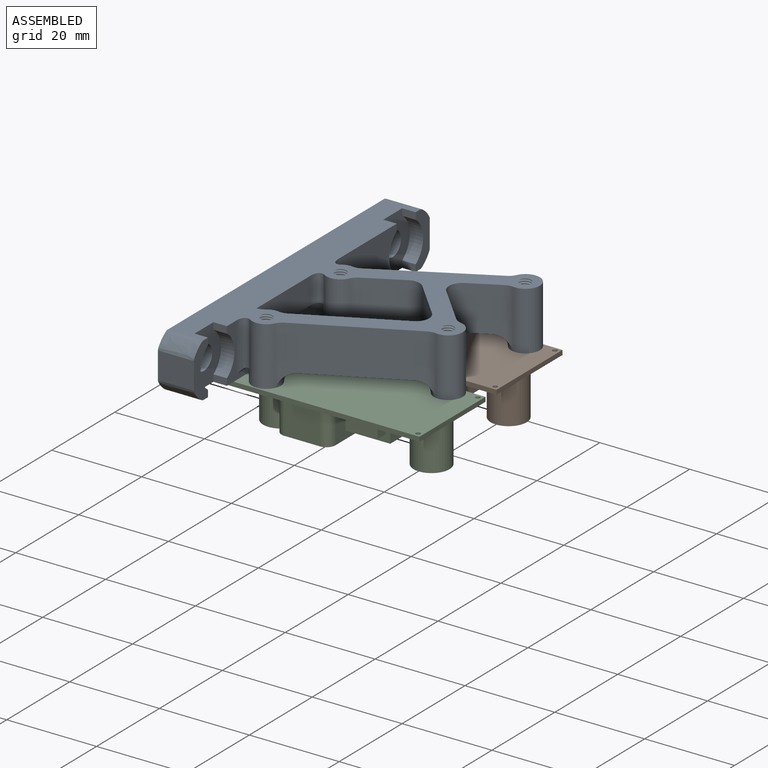
[diagram: assembled view]
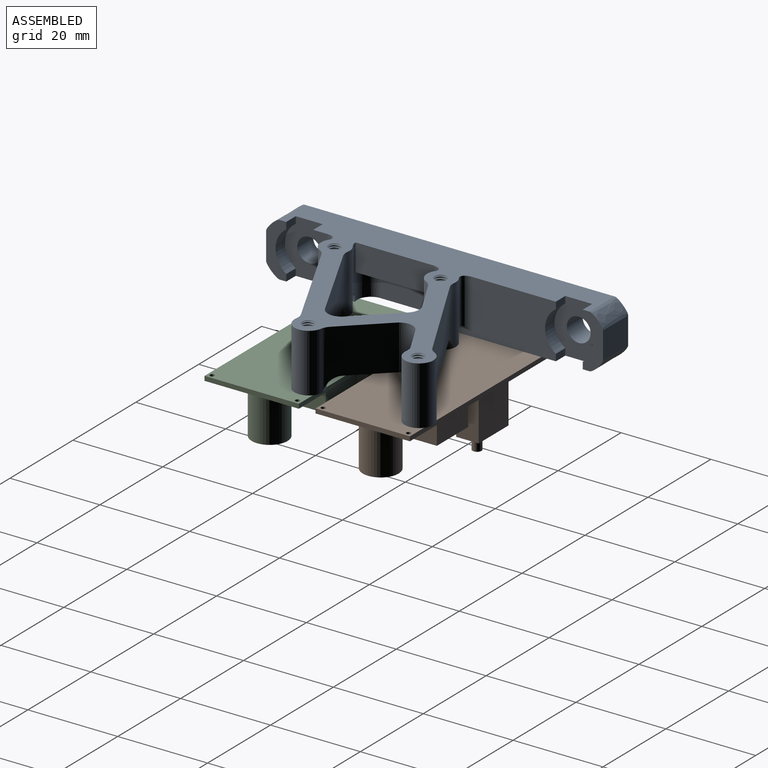
[diagram: assembled view, second angle]
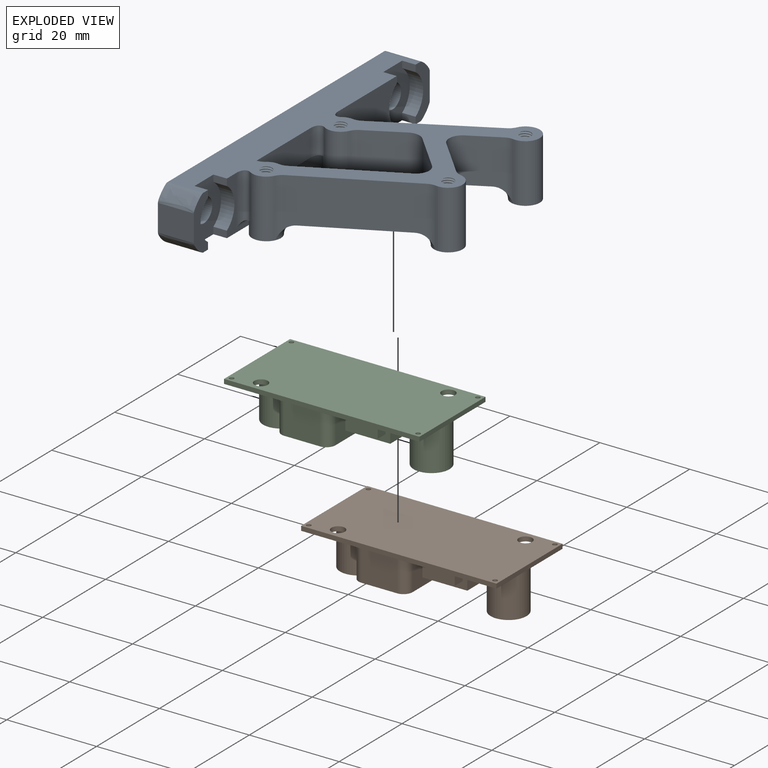
[diagram: exploded view]
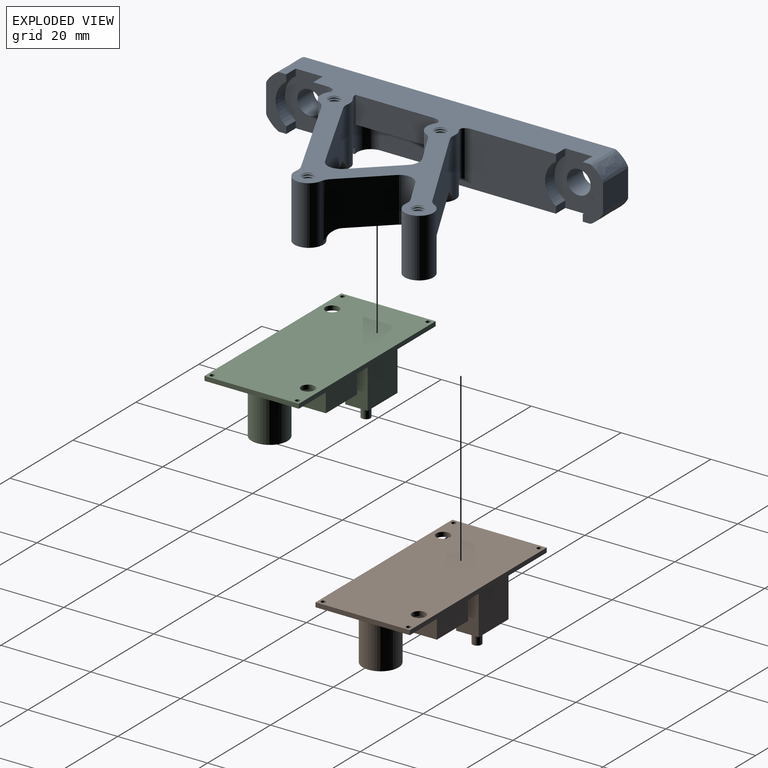
[diagram: exploded view, second angle]
ASSEMBLY  parts=3 mates=2
PART A: 100 faces, bbox 45.9x75.8x16.1 mm
  f0: cylinder r=3.2mm len=13mm, axis (0,0,-1), area 130.2mm2, adj f20,f35,f46,f77
  f1: plane 23.11x20.79mm, normal (0,0,1), area 148.7mm2, adj f23,f24,f26,f28,f29,f34,f36,f37
  f2: plane 21.25x13.52mm, normal (0,0,1), area 85.4mm2, adj f22,f31,f36,f94,f97
  f3: plane 0.71x0.71mm, normal (0,0,1), area 0.1mm2, adj f5,f21,f32
  f4: plane 0.77x0.76mm, normal (0,0,1), area 0.2mm2, adj f5,f21,f53
  f5: cylinder r=1mm len=6.52mm, axis (0,1,0), area 6.5mm2, adj f3,f4,f15,f21,f32,f33,f47,f53
  f6: plane 0.77x0.76mm, normal (0,0,1), area 0.2mm2, adj f8,f25,f54
  f7: plane 0.77x0.76mm, normal (0,0,1), area 0mm2, adj f8,f25,f48,f55
  f8: cylinder r=1mm len=6.26mm, axis (0,1,0), area 5.8mm2, adj f6,f7,f10,f25,f42,f48,f54
  f9: plane 12.76x5.26mm, normal (1,0,0), area 32.6mm2, adj f11,f18,f20,f64,f65,f68,f72,f73
  f10: plane 24.31x12mm, normal (1,0,0), area 214.2mm2, adj f8,f11,f20,f42,f48,f57,f58,f61
  f11: plane 69x8mm, normal (0,0,1), area 436.9mm2, adj f9,f10,f14,f15,f17,f47,f48,f50
  f12: cylinder r=2.65mm len=5.3mm, axis (1,0,0), area 83.3mm2, adj f14,f69
  f13: cylinder r=2.65mm len=5.3mm, axis (1,0,0), area 83.3mm2, adj f14,f62
  f14: plane 75.76x12.76mm, normal (-1,0,0), area 843.5mm2, adj f11,f12,f13,f18,f19,f20,f70,f71
  f15: plane 12x9.27mm, normal (1,0,0), area 28.2mm2, adj f5,f11,f20,f33,f47,f63,f66,f67
  f16: plane 17.3x6mm, normal (1,0,0), area 103.8mm2, adj f20,f32,f43,f49
  f17: plane 12.76x5.26mm, normal (1,0,0), area 32.6mm2, adj f11,f19,f20,f56,f59,f60,f70,f71
  f18: plane 8x6mm, normal (0,1,0), area 48mm2, adj f9,f14,f72,f73
  f19: plane 8x6mm, normal (0,-1,0), area 48mm2, adj f14,f17,f70,f71
  f20: plane 69.14x44.87mm, normal (0,0,-1), area 930.3mm2, adj f0,f9,f10,f14,f15,f16,f17,f21
  f21: cylinder r=3.2mm len=13mm, axis (0,0,-1), area 122.5mm2, adj f3,f4,f5,f20,f32,f44,f45,f53
  f22: plane 20.77x10.91mm, normal (-0.45,-0.89,0), area 231.8mm2, adj f2,f20,f36,f44,f97
  f23: plane 10x8.64mm, normal (-0.73,0.69,0), area 119.1mm2, adj f1,f20,f36,f37
  f24: plane 10.91x8.01mm, normal (0.47,0.88,0), area 90mm2, adj f1,f20,f37,f38,f99
  f25: cylinder r=3.2mm len=13mm, axis (0,0,-1), area 121.7mm2, adj f6,f7,f8,f20,f38,f39,f54,f55
  f26: plane 23.59x12.67mm, normal (-0.47,-0.88,0), area 267.2mm2, adj f1,f20,f39,f40,f98,f99
  f27: cylinder r=3.2mm len=13mm, axis (0,0,-1), area 183.3mm2, adj f20,f40,f41,f75
  f28: plane 10.91x6.55mm, normal (0.47,0.88,0), area 73.5mm2, adj f1,f20,f34,f41,f98
  f29: plane 10.91x8.98mm, normal (0.73,-0.69,0), area 122.7mm2, adj f1,f20,f34,f35,f96
  f30: cylinder r=3.2mm len=1.78mm, axis (0,0,-1), area 0mm2, adj f77,f95
  f31: plane 23.5x11.9mm, normal (0.45,0.89,0), area 262.9mm2, adj f2,f20,f45,f46,f94,f97
  f32: cylinder r=3mm len=10.01mm, axis (0,0,1), area 14.7mm2, adj f3,f5,f16,f20,f21,f47,f49
  f33: cylinder r=3mm len=11mm, axis (0,0,-1), area 14.5mm2, adj f5,f15,f20,f53
  f34: cylinder r=3mm len=10mm, axis (0,0,-1), area 55.2mm2, adj f1,f20,f28,f29
  f35: cylinder r=3mm len=13mm, axis (0,0,-1), area 22.6mm2, adj f0,f20,f29,f96
  f36: cylinder r=3mm len=10mm, axis (0,0,-1), area 55.9mm2, adj f1,f2,f20,f22,f23,f95
  f37: cylinder r=3mm len=10mm, axis (0,0,1), area 39.1mm2, adj f1,f20,f23,f24
  f38: cylinder r=3mm len=13mm, axis (0,0,-1), area 22.6mm2, adj f20,f24,f25,f99
  f39: cylinder r=3mm len=13mm, axis (0,0,-1), area 22.6mm2, adj f20,f25,f26,f99
  f40: cylinder r=3mm len=13mm, axis (0,0,-1), area 22.6mm2, adj f20,f26,f27,f98
  f41: cylinder r=3mm len=13mm, axis (0,0,-1), area 22.6mm2, adj f20,f27,f28,f98
  f42: cylinder r=3mm len=11mm, axis (0,0,-1), area 14.5mm2, adj f8,f10,f20,f54
  f43: cylinder r=3mm len=6mm, axis (0,0,-1), area 8.2mm2, adj f16,f20,f49,f55
  f44: cylinder r=3mm len=13mm, axis (0,0,-1), area 22.6mm2, adj f20,f21,f22,f97
  f45: cylinder r=3mm len=13mm, axis (0,0,-1), area 22.6mm2, adj f20,f21,f31,f97
  f46: cylinder r=3mm len=13mm, axis (0,0,-1), area 22.6mm2, adj f0,f20,f31,f94
  f47: plane 6x0.93mm, normal (-0.32,-0.95,0), area 4.2mm2, adj f5,f11,f15,f32,f49,f50
  f48: cylinder r=3mm len=6mm, axis (0,0,1), area 38.9mm2, adj f7,f8,f10,f11,f49,f51,f52,f55
  f49: plane 20.76x3.48mm, normal (0,0,1), area 42.8mm2, adj f16,f32,f43,f47,f48,f50,f52,f55
  f50: cylinder r=3mm len=6mm, axis (0,0,1), area 30.5mm2, adj f11,f47,f49,f51,f52
  f51: plane 14.76x4mm, normal (1,0,0), area 59.1mm2, adj f11,f48,f50,f52
  f52: cylinder r=2mm len=20.42mm, axis (0,-1,0), area 55.3mm2, adj f48,f49,f50,f51
  f53: cylinder r=1mm len=10.28mm, axis (0,0,-1), area 17.4mm2, adj f4,f5,f20,f21,f33
  f54: cylinder r=1mm len=10.28mm, axis (0,0,-1), area 17.4mm2, adj f6,f8,f20,f25,f42
  f55: cylinder r=1mm len=10mm, axis (0,0,-1), area 11.7mm2, adj f7,f20,f25,f43,f48,f49
  f56: cylinder r=5.4mm len=8.98mm, axis (1,0,0), area 31.8mm2, adj f17,f59,f60,f62
  f57: cylinder r=5.4mm len=8.98mm, axis (1,0,0), area 31.8mm2, adj f10,f58,f61,f62
  f58: plane 3x1.51mm, normal (0,-1,0), area 4.5mm2, adj f10,f11,f57,f62
  f59: plane 3x1.51mm, normal (0,1,0), area 4.5mm2, adj f11,f17,f56,f62
  f60: plane 3x1.51mm, normal (0,1,0), area 4.5mm2, adj f17,f20,f56,f62
  f61: plane 3x1.51mm, normal (0,-1,0), area 4.5mm2, adj f10,f20,f57,f62
  f62: plane 12x10.8mm, normal (1,0,0), area 80.3mm2, adj f11,f13,f20,f56,f57,f58,f59,f60
  f63: cylinder r=5.4mm len=8.98mm, axis (1,0,0), area 31.8mm2, adj f15,f66,f67,f69
  f64: cylinder r=5.4mm len=8.98mm, axis (1,0,0), area 31.8mm2, adj f9,f65,f68,f69
  f65: plane 3x1.51mm, normal (0,-1,0), area 4.5mm2, adj f9,f11,f64,f69
  f66: plane 3x1.51mm, normal (0,1,0), area 4.5mm2, adj f11,f15,f63,f69
  f67: plane 3x1.51mm, normal (0,1,0), area 4.5mm2, adj f15,f20,f63,f69
  f68: plane 3x1.51mm, normal (0,-1,0), area 4.5mm2, adj f9,f20,f64,f69
  f69: plane 12x10.8mm, normal (1,0,0), area 80.3mm2, adj f11,f12,f20,f63,f64,f65,f66,f67
  f70: bspline ~8.8x3mm, area 35.1mm2, adj f11,f14,f17,f19
  f71: bspline ~8.8x3mm, area 35.1mm2, adj f14,f17,f19,f20
  f72: bspline ~8.8x3mm, area 35.1mm2, adj f9,f11,f14,f18
  f73: bspline ~8.8x3mm, area 35.1mm2, adj f9,f14,f18,f20
  f74: plane 6.54x6.54mm, normal (0,0,1), area 26.2mm2, adj f25,f78,f79,f80,f81,f99
  f75: plane 6.54x6.54mm, normal (0,0,1), area 26.2mm2, adj f27,f90,f91,f92,f93,f98
  f76: plane 6.54x6.54mm, normal (0,0,1), area 26.2mm2, adj f21,f82,f83,f84,f85,f97
  f77: plane 6.54x6.54mm, normal (0,0,1), area 26.2mm2, adj f0,f30,f86,f87,f88,f89,f94,f96
  f78: bspline ~13.32x3.51mm, area 70.3mm2, adj f20,f74,f80,f81
  f79: bspline ~13.41x3.51mm, area 71mm2, adj f20,f74,f80,f81
  f80: bspline ~13.23x3.56mm, area 18.1mm2, adj f20,f74,f78,f79
  f81: cylinder r=1.25mm len=13mm, axis (0,0,1), area 64.3mm2, adj f20,f74,f78,f79
  f82: bspline ~13.32x3.51mm, area 70.3mm2, adj f20,f76,f84,f85
  f83: bspline ~13.41x3.51mm, area 71mm2, adj f20,f76,f84,f85
  f84: bspline ~13.23x3.56mm, area 18.1mm2, adj f20,f76,f82,f83
  f85: cylinder r=1.25mm len=13mm, axis (0,0,1), area 64.3mm2, adj f20,f76,f82,f83
  f86: bspline ~13.32x3.51mm, area 70.3mm2, adj f20,f77,f88,f89
  f87: bspline ~13.41x3.51mm, area 71mm2, adj f20,f77,f88,f89
  f88: bspline ~13.23x3.56mm, area 18.1mm2, adj f20,f77,f86,f87
  f89: cylinder r=1.25mm len=13mm, axis (0,0,1), area 64.3mm2, adj f20,f77,f86,f87
  f90: bspline ~13.32x3.51mm, area 70.3mm2, adj f20,f75,f92,f93
  f91: bspline ~13.41x3.51mm, area 71mm2, adj f20,f75,f92,f93
  f92: bspline ~13.23x3.56mm, area 18.1mm2, adj f20,f75,f90,f91
  f93: cylinder r=1.25mm len=13mm, axis (0,0,1), area 64.3mm2, adj f20,f75,f90,f91
  f94: torus R=6.2mm, axis (0,0,1), area 18mm2, adj f2,f31,f46,f77,f95
  f95: bspline ~3.45x3.29mm, area 9.7mm2, adj f30,f36,f94,f96
  f96: torus R=6.2mm, axis (0,0,1), area 18mm2, adj f1,f29,f35,f77,f95
  f97: torus R=6.2mm, axis (0,0,1), area 21.8mm2, adj f2,f22,f31,f44,f45,f76
  f98: torus R=6.2mm, axis (0,0,1), area 21.8mm2, adj f1,f26,f28,f40,f41,f75
  f99: torus R=6.2mm, axis (0,0,1), area 21.8mm2, adj f1,f24,f26,f38,f39,f74
PART B: 176 faces, bbox 43.5x21x13 mm
  f0: plane 9.5x5mm, normal (0,0,1), area 44.4mm2, adj f36,f37,f38,f39,f174
  f1: plane 43.5x21mm, normal (0,0,1), area 427.3mm2, adj f3,f4,f5,f6,f7,f8,f9,f10
  f2: plane 43.5x21mm, normal (0,0,-1), area 896.2mm2, adj f3,f4,f5,f6,f7,f8,f9,f10
  f3: plane 21x1mm, normal (-1,0,0), area 21mm2, adj f1,f2,f4,f6
  f4: plane 43.5x1mm, normal (0,-1,0), area 43.5mm2, adj f1,f2,f3,f5
  f5: plane 21x1mm, normal (1,0,0), area 21mm2, adj f1,f2,f4,f6
  f6: plane 43.5x1mm, normal (0,1,0), area 43.5mm2, adj f1,f2,f3,f5
  f7: cylinder r=1.5mm len=3mm, axis (0,0,-1), area 9.4mm2, adj f1,f2
  f8: cylinder r=1.5mm len=3mm, axis (0,0,-1), area 9.4mm2, adj f1,f2
  f9: cylinder r=0.5mm len=1mm, axis (0,0,-1), area 3.1mm2, adj f1,f2
  f10: cylinder r=0.5mm len=1mm, axis (0,0,-1), area 3.1mm2, adj f1,f2
  f11: cylinder r=0.5mm len=1mm, axis (0,0,-1), area 3.1mm2, adj f1,f2
  f12: cylinder r=0.5mm len=1mm, axis (0,0,-1), area 3.1mm2, adj f1,f2
  f13: cylinder r=4mm len=10mm, axis (0,0,-1), area 251.3mm2, adj f1,f14
  f14: plane 8x8mm, normal (0,0,1), area 50.3mm2, adj f13
  f15: cylinder r=4mm len=10mm, axis (0,0,-1), area 251.3mm2, adj f1,f16
  f16: plane 8x8mm, normal (0,0,1), area 50.3mm2, adj f15
  f17: plane 15x5mm, normal (-1,0,0), area 75mm2, adj f1,f18,f20,f21
  f18: plane 10x5mm, normal (0,-1,0), area 50mm2, adj f1,f17,f19,f21
  f19: plane 15x5mm, normal (1,0,0), area 75mm2, adj f1,f18,f20,f21
  f20: plane 10x5mm, normal (0,1,0), area 50mm2, adj f1,f17,f19,f21
  f21: plane 15x10mm, normal (0,0,1), area 150mm2, adj f17,f18,f19,f20
  f22: cylinder r=2mm len=8mm, axis (0,0,-1), area 25.1mm2, adj f1,f23,f29,f30
  f23: plane 8x8mm, normal (0,-1,0), area 64mm2, adj f1,f22,f24,f30
  f24: cylinder r=2mm len=8mm, axis (0,0,-1), area 25.1mm2, adj f1,f23,f25,f30
  f25: plane 8x8mm, normal (1,0,0), area 64mm2, adj f1,f24,f26,f30
  f26: cylinder r=2mm len=8mm, axis (0,0,-1), area 25.1mm2, adj f1,f25,f27,f30
  f27: plane 8x8mm, normal (0,1,0), area 64mm2, adj f1,f26,f28,f30
  f28: cylinder r=2mm len=8mm, axis (0,0,-1), area 25.1mm2, adj f1,f27,f29,f30
  f29: plane 8x8mm, normal (-1,0,0), area 64mm2, adj f1,f22,f28,f30
  f30: plane 12x12mm, normal (0,0,1), area 140.6mm2, adj f22,f23,f24,f25,f26,f27,f28,f29
  f31: plane 2.5x2.5mm, normal (-1,0,0), area 6.3mm2, adj f1,f32,f34,f35
  f32: plane 6x2.5mm, normal (0,-1,0), area 15mm2, adj f1,f31,f33,f35
  f33: plane 2.5x2.5mm, normal (1,0,0), area 6.3mm2, adj f1,f32,f34,f35
  f34: plane 6x2.5mm, normal (0,1,0), area 15mm2, adj f1,f31,f33,f35
  f35: plane 6x2.5mm, normal (0,0,1), area 15mm2, adj f31,f32,f33,f34
  f36: plane 10x5mm, normal (-1,0,0), area 50mm2, adj f0,f1,f37,f39
  f37: plane 10x9.5mm, normal (0,-1,0), area 95mm2, adj f0,f1,f36,f38
  f38: plane 10x5mm, normal (1,0,0), area 50mm2, adj f0,f1,f37,f39
  f39: plane 10x9.5mm, normal (0,1,0), area 95mm2, adj f0,f1,f36,f38
  f40: plane 2.12x0.1mm, normal (1,0,0), area 0.2mm2, adj f1,f41,f43,f44
  f41: plane 0.19x0.1mm, normal (0,-1,0), area 0mm2, adj f1,f40,f42,f44
  f42: plane 2.12x0.1mm, normal (-1,0,0), area 0.2mm2, adj f1,f41,f43,f44
  f43: plane 0.19x0.1mm, normal (0,1,0), area 0mm2, adj f1,f40,f42,f44
  f44: plane 2.12x0.19mm, normal (0,0,1), area 0.4mm2, adj f40,f41,f42,f43
  f45: plane 0.19x0.1mm, normal (0,-1,0), area 0mm2, adj f1,f46,f54,f55
  f46: plane 1.66x0.1mm, normal (-1,0,0), area 0.2mm2, adj f1,f45,f47,f55
  f47: plane 1.66x1.4mm, normal (0.77,-0.64,0), area 0.2mm2, adj f1,f46,f48,f55
  f48: plane 0.1x0.04mm, normal (0,-1,0), area 0mm2, adj f1,f47,f49,f55
  f49: plane 2.12x0.1mm, normal (-1,0,0), area 0.2mm2, adj f1,f48,f50,f55
  f50: plane 0.19x0.1mm, normal (0,1,0), area 0mm2, adj f1,f49,f51,f55
  f51: plane 1.67x0.1mm, normal (1,0,0), area 0.2mm2, adj f1,f50,f52,f55
  f52: plane 1.67x1.4mm, normal (-0.77,0.64,0), area 0.2mm2, adj f1,f51,f53,f55
  f53: plane 0.1x0.04mm, normal (0,1,0), area 0mm2, adj f1,f52,f54,f55
  f54: plane 2.12x0.1mm, normal (1,0,0), area 0.2mm2, adj f1,f45,f53,f55
  f55: plane 2.12x1.63mm, normal (0,0,1), area 1.1mm2, adj f45,f46,f47,f48,f49,f50,f51,f52
  f56: plane 0.22x0.1mm, normal (1,0,0), area 0mm2, adj f1,f57,f59,f60
  f57: plane 0.81x0.1mm, normal (0,-1,0), area 0.1mm2, adj f1,f56,f58,f60
  f58: plane 0.22x0.1mm, normal (-1,0,0), area 0mm2, adj f1,f57,f59,f60
  f59: plane 0.81x0.1mm, normal (0,1,0), area 0.1mm2, adj f1,f56,f58,f60
  f60: plane 0.81x0.22mm, normal (0,0,1), area 0.2mm2, adj f56,f57,f58,f59
  f61: plane 2.23x2.23mm, normal (0,0,1), area 1.3mm2, adj f62,f63,f64,f65,f66,f67,f68,f69
  f62: extruded ~1.12x1.1mm, area 0.2mm2, adj f1,f61,f63,f65
  f63: extruded ~1.12x1.1mm, area 0.2mm2, adj f1,f61,f62,f64
  f64: extruded ~1.11x1.11mm, area 0.2mm2, adj f1,f61,f63,f65
  f65: extruded ~1.13x1.11mm, area 0.2mm2, adj f1,f61,f62,f64
  f66: extruded ~0.93x0.89mm, area 0.1mm2, adj f61,f67,f69,f70
  f67: extruded ~0.92x0.9mm, area 0.1mm2, adj f61,f66,f68,f70
  f68: extruded ~0.92x0.89mm, area 0.1mm2, adj f61,f67,f69,f70
  f69: extruded ~0.93x0.9mm, area 0.1mm2, adj f61,f66,f68,f70
  f70: plane 1.85x1.79mm, normal (0,0,1), area 2.6mm2, adj f66,f67,f68,f69
  f71: plane 1.28x0.1mm, normal (1,0,0), area 0.1mm2, adj f1,f72,f83,f84
  f72: extruded ~0.45x0.1mm, area 0mm2, adj f1,f71,f73,f84
  f73: extruded ~0.66x0.45mm, area 0.1mm2, adj f1,f72,f74,f84
  f74: extruded ~0.89x0.66mm, area 0.1mm2, adj f1,f73,f75,f84
  f75: plane 1.28x0.1mm, normal (-1,0,0), area 0.1mm2, adj f1,f74,f76,f84
  f76: plane 0.19x0.1mm, normal (0,1,0), area 0mm2, adj f1,f75,f77,f84
  f77: plane 1.27x0.1mm, normal (1,0,0), area 0.1mm2, adj f1,f76,f78,f84
  f78: extruded ~0.33x0.1mm, area 0mm2, adj f1,f77,f79,f84
  f79: extruded ~0.46x0.36mm, area 0.1mm2, adj f1,f78,f80,f84
  f80: extruded ~0.49x0.4mm, area 0.1mm2, adj f1,f79,f81,f84
  f81: cylinder r=2.72mm len=0.28mm, axis (0,0,-1), area 0mm2, adj f1,f80,f82,f84
  f82: plane 1.27x0.1mm, normal (-1,0,0), area 0.1mm2, adj f1,f81,f83,f84
  f83: plane 0.19x0.1mm, normal (0,1,0), area 0mm2, adj f1,f71,f82,f84
  f84: plane 2.17x1.36mm, normal (0,0,1), area 0.9mm2, adj f71,f72,f73,f74,f75,f76,f77,f78
  f85: plane 0.46x0.1mm, normal (0,-1,0), area 0mm2, adj f1,f86,f92,f93
  f86: plane 1.9x0.1mm, normal (1,0,0), area 0.2mm2, adj f1,f85,f87,f93
  f87: plane 0.19x0.1mm, normal (0,-1,0), area 0mm2, adj f1,f86,f88,f93
  f88: plane 1.9x0.1mm, normal (-1,0,0), area 0.2mm2, adj f1,f87,f89,f93
  f89: plane 0.46x0.1mm, normal (0,-1,0), area 0mm2, adj f1,f88,f90,f93
  f90: plane 0.22x0.1mm, normal (-1,0,0), area 0mm2, adj f1,f89,f91,f93
  f91: plane 1.11x0.1mm, normal (0,1,0), area 0.1mm2, adj f1,f90,f92,f93
  f92: plane 0.22x0.1mm, normal (1,0,0), area 0mm2, adj f1,f85,f91,f93
  f93: plane 2.12x1.11mm, normal (0,0,1), area 0.6mm2, adj f85,f86,f87,f88,f89,f90,f91,f92
  f94: plane 0.22x0.1mm, normal (1,0,0), area 0mm2, adj f1,f95,f97,f98
  f95: plane 0.81x0.1mm, normal (0,-1,0), area 0.1mm2, adj f1,f94,f96,f98
  f96: plane 0.22x0.1mm, normal (-1,0,0), area 0mm2, adj f1,f95,f97,f98
  f97: plane 0.81x0.1mm, normal (0,1,0), area 0.1mm2, adj f1,f94,f96,f98
  f98: plane 0.81x0.22mm, normal (0,0,1), area 0.2mm2, adj f94,f95,f96,f97
  f99: plane 2.12x0.1mm, normal (-1,0,0), area 0.2mm2, adj f1,f100,f102,f103
  f100: plane 0.19x0.1mm, normal (0,1,0), area 0mm2, adj f1,f99,f101,f103
  f101: plane 2.12x0.1mm, normal (1,0,0), area 0.2mm2, adj f1,f100,f102,f103
  f102: plane 0.19x0.1mm, normal (0,-1,0), area 0mm2, adj f1,f99,f101,f103
  f103: plane 2.12x0.19mm, normal (0,0,1), area 0.4mm2, adj f99,f100,f101,f102
  f104: plane 0.19x0.1mm, normal (0,-1,0), area 0mm2, adj f1,f105,f113,f114
  f105: plane 2.12x0.1mm, normal (-1,0,0), area 0.2mm2, adj f1,f104,f106,f114
  f106: plane 0.1x0.04mm, normal (0,1,0), area 0mm2, adj f1,f105,f107,f114
  f107: plane 1.67x1.4mm, normal (0.77,0.64,0), area 0.2mm2, adj f1,f106,f108,f114
  f108: plane 1.67x0.1mm, normal (-1,0,0), area 0.2mm2, adj f1,f107,f109,f114
  f109: plane 0.19x0.1mm, normal (0,1,0), area 0mm2, adj f1,f108,f110,f114
  f110: plane 2.12x0.1mm, normal (1,0,0), area 0.2mm2, adj f1,f109,f111,f114
  f111: plane 0.1x0.04mm, normal (0,-1,0), area 0mm2, adj f1,f110,f112,f114
  f112: plane 1.66x1.4mm, normal (-0.77,-0.64,0), area 0.2mm2, adj f1,f111,f113,f114
  f113: plane 1.66x0.1mm, normal (1,0,0), area 0.2mm2, adj f1,f104,f112,f114
  f114: plane 2.12x1.63mm, normal (0,0,1), area 1.1mm2, adj f104,f105,f106,f107,f108,f109,f110,f111
  f115: plane 0.62x0.1mm, normal (0,1,0), area 0.1mm2, adj f1,f116,f126,f127
  f116: plane 0.62x0.1mm, normal (-1,0,0), area 0.1mm2, adj f1,f115,f117,f127
  f117: plane 0.19x0.1mm, normal (0,1,0), area 0mm2, adj f1,f116,f118,f127
  f118: plane 0.62x0.1mm, normal (1,0,0), area 0.1mm2, adj f1,f117,f119,f127
  f119: plane 0.62x0.1mm, normal (0,1,0), area 0.1mm2, adj f1,f118,f120,f127
  f120: plane 0.19x0.1mm, normal (1,0,0), area 0mm2, adj f1,f119,f121,f127
  f121: plane 0.62x0.1mm, normal (0,-1,0), area 0.1mm2, adj f1,f120,f122,f127
  f122: plane 0.62x0.1mm, normal (1,0,0), area 0.1mm2, adj f1,f121,f123,f127
  f123: plane 0.19x0.1mm, normal (0,-1,0), area 0mm2, adj f1,f122,f124,f127
  f124: plane 0.62x0.1mm, normal (-1,0,0), area 0.1mm2, adj f1,f123,f125,f127
  f125: plane 0.62x0.1mm, normal (0,-1,0), area 0.1mm2, adj f1,f124,f126,f127
  f126: plane 0.19x0.1mm, normal (-1,0,0), area 0mm2, adj f1,f115,f125,f127
  f127: plane 1.44x1.44mm, normal (0,0,1), area 0.5mm2, adj f115,f116,f117,f118,f119,f120,f121,f122
  f128: extruded ~1.12x1.1mm, area 0.2mm2, adj f1,f129,f131,f132
  f129: extruded ~1.13x1.11mm, area 0.2mm2, adj f1,f128,f130,f132
  f130: extruded ~1.11x1.11mm, area 0.2mm2, adj f1,f129,f131,f132
  f131: extruded ~1.12x1.1mm, area 0.2mm2, adj f1,f128,f130,f132
  f132: plane 2.23x2.23mm, normal (0,0,1), area 1.3mm2, adj f128,f129,f130,f131,f133,f134,f135,f136
  f133: extruded ~0.93x0.89mm, area 0.1mm2, adj f132,f134,f136,f137
  f134: extruded ~0.93x0.9mm, area 0.1mm2, adj f132,f133,f135,f137
  f135: extruded ~0.92x0.89mm, area 0.1mm2, adj f132,f134,f136,f137
  f136: extruded ~0.92x0.9mm, area 0.1mm2, adj f132,f133,f135,f137
  f137: plane 1.85x1.79mm, normal (0,0,1), area 2.6mm2, adj f133,f134,f135,f136
  f138: plane 1.28x0.1mm, normal (-1,0,0), area 0.1mm2, adj f1,f139,f150,f151
  f139: plane 0.19x0.1mm, normal (0,1,0), area 0mm2, adj f1,f138,f140,f151
  f140: plane 1.27x0.1mm, normal (1,0,0), area 0.1mm2, adj f1,f139,f141,f151
  f141: cylinder r=2.72mm len=0.28mm, axis (0,0,1), area 0mm2, adj f1,f140,f142,f151
  f142: extruded ~0.49x0.4mm, area 0.1mm2, adj f1,f141,f143,f151
  f143: extruded ~0.46x0.36mm, area 0.1mm2, adj f1,f142,f144,f151
  f144: extruded ~0.33x0.1mm, area 0mm2, adj f1,f143,f145,f151
  f145: plane 1.27x0.1mm, normal (-1,0,0), area 0.1mm2, adj f1,f144,f146,f151
  f146: plane 0.19x0.1mm, normal (0,1,0), area 0mm2, adj f1,f145,f147,f151
  f147: plane 1.28x0.1mm, normal (1,0,0), area 0.1mm2, adj f1,f146,f148,f151
  f148: extruded ~0.89x0.66mm, area 0.1mm2, adj f1,f147,f149,f151
  f149: extruded ~0.66x0.45mm, area 0.1mm2, adj f1,f148,f150,f151
  f150: extruded ~0.45x0.1mm, area 0mm2, adj f1,f138,f149,f151
  f151: plane 2.17x1.36mm, normal (0,0,1), area 0.9mm2, adj f138,f139,f140,f141,f142,f143,f144,f145
  f152: plane 0.46x0.1mm, normal (0,-1,0), area 0mm2, adj f1,f153,f159,f160
  f153: plane 0.22x0.1mm, normal (-1,0,0), area 0mm2, adj f1,f152,f154,f160
  f154: plane 1.11x0.1mm, normal (0,1,0), area 0.1mm2, adj f1,f153,f155,f160
  f155: plane 0.22x0.1mm, normal (1,0,0), area 0mm2, adj f1,f154,f156,f160
  f156: plane 0.46x0.1mm, normal (0,-1,0), area 0mm2, adj f1,f155,f157,f160
  f157: plane 1.9x0.1mm, normal (1,0,0), area 0.2mm2, adj f1,f156,f158,f160
  f158: plane 0.19x0.1mm, normal (0,-1,0), area 0mm2, adj f1,f157,f159,f160
  f159: plane 1.9x0.1mm, normal (-1,0,0), area 0.2mm2, adj f1,f152,f158,f160
  f160: plane 2.12x1.11mm, normal (0,0,1), area 0.6mm2, adj f152,f153,f154,f155,f156,f157,f158,f159
  f161: plane 0.62x0.1mm, normal (0,1,0), area 0.1mm2, adj f1,f162,f172,f173
  f162: plane 0.62x0.1mm, normal (-1,0,0), area 0.1mm2, adj f1,f161,f163,f173
  f163: plane 0.19x0.1mm, normal (0,1,0), area 0mm2, adj f1,f162,f164,f173
  f164: plane 0.62x0.1mm, normal (1,0,0), area 0.1mm2, adj f1,f163,f165,f173
  f165: plane 0.62x0.1mm, normal (0,1,0), area 0.1mm2, adj f1,f164,f166,f173
  f166: plane 0.19x0.1mm, normal (1,0,0), area 0mm2, adj f1,f165,f167,f173
  f167: plane 0.62x0.1mm, normal (0,-1,0), area 0.1mm2, adj f1,f166,f168,f173
  f168: plane 0.62x0.1mm, normal (1,0,0), area 0.1mm2, adj f1,f167,f169,f173
  f169: plane 0.19x0.1mm, normal (0,-1,0), area 0mm2, adj f1,f168,f170,f173
  f170: plane 0.62x0.1mm, normal (-1,0,0), area 0.1mm2, adj f1,f169,f171,f173
  f171: plane 0.62x0.1mm, normal (0,-1,0), area 0.1mm2, adj f1,f170,f172,f173
  f172: plane 0.19x0.1mm, normal (-1,0,0), area 0mm2, adj f1,f161,f171,f173
  f173: plane 1.44x1.44mm, normal (0,0,1), area 0.5mm2, adj f161,f162,f163,f164,f165,f166,f167,f168
  f174: cylinder r=1mm len=2mm, axis (0,0,-1), area 12.6mm2, adj f0,f175
  f175: plane 2x2mm, normal (0,0,1), area 3.1mm2, adj f174
PART C: same geometry as B
PLACE A rot(axis=(1,0,0),180deg) t=(-30.85,52.52,33.7)mm
PLACE B rot(axis=(1,0,0),180deg) t=(-4.57,112.56,28.7)mm
PLACE C rot(axis=(1,0,0),180deg) t=(-4.47,87.91,28.7)mm
MATE fastened B.f7 <-> A.f27  axis (0,0,1) through (10.68,72.56,20.7)mm
MATE fastened A.f77 <-> C.f7  axis (0,0,-1) through (10.78,47.91,20.7)mm
